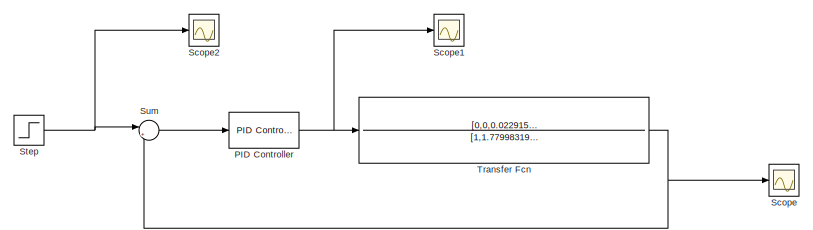
[diagram: root canvas - part 1/3, top center region]
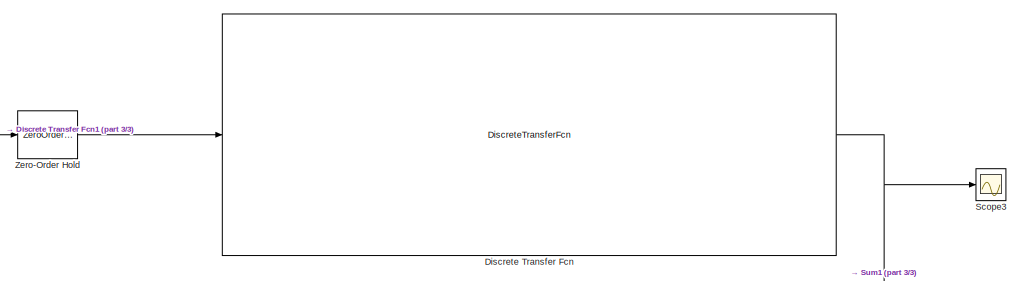
[diagram: root canvas - part 2/3, bottom right region]
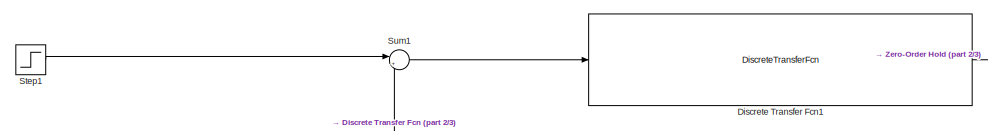
[diagram: root canvas - part 3/3, bottom left region]
MODEL slx_5bbf10d068c1
KIND model
CONFIG AbsTol = auto
CONFIG EnableMultiTasking = off
CONFIG FixedStep = auto
CONFIG MaxStep = auto
CONFIG MinStep = auto
CONFIG RelTol = 1e-3
CONFIG SampleTimeConstraint = Unconstrained
CONFIG Solver = VariableStepAuto
CONFIG SolverName = VariableStepAuto
CONFIG StartTime = 0.0
CONFIG StopTime = 50
BLOCK [DiscreteTransferFcn] Discrete Transfer Fcn
  Denominator = [1,-1.98212934256977,0.982358196992853]
  InputPortMap = u0
  Numerator = [5.67795564035598e-07,1.13559112807120e-06,5.67795564035598e-07]
  Ports = [1, 1]
BLOCK [DiscreteTransferFcn] Discrete Transfer Fcn1
  Denominator = [1,-1]
  InputPortMap = u0
  Numerator = [12.0550020000000,-11.9449980000000]
  Ports = [1, 1]
BLOCK [Reference] PID Controller  REF=simulink/Continuous/PID Controller
  Ports = [1, 1]
  SourceBlock = simulink/Continuous/PID Controller
  SourceProductBaseCode = SL
  SourceProductName = Simulink
  SourceType = PID 1dof
BLOCK [Scope] Scope
  NumInputPorts = 1
  Ports = [1]
  ScopeSpecificationString = Simulink.scopes.TimeScopeBlockCfg('CurrentConfiguration', extmgr.ConfigurationSet(extmgr.Configuration('Core','General UI',true),extmgr.Configuration('Core','Source UI',true),extmgr.Configuration('Sources','WiredSimulink',true),extmgr.Configuration('Visuals','Time Domain',true,'SerializedDisplays',{struct('MinYLimReal','-1.86443','MaxYLimReal','16.77987','YLabelReal','','MinYLimMag','0.00000','Max...<+1363ch>
BLOCK [Scope] Scope1
  NumInputPorts = 1
  Ports = [1]
  ScopeSpecificationString = Simulink.scopes.TimeScopeBlockCfg('CurrentConfiguration', extmgr.ConfigurationSet(extmgr.Configuration('Core','General UI',true),extmgr.Configuration('Core','Source UI',true),extmgr.Configuration('Sources','WiredSimulink',true,'DataLoggingVariableName','ScopeData1'),extmgr.Configuration('Visuals','Time Domain',true,'SerializedDisplays',{struct('MinYLimReal','-187.94911','MaxYLimReal','1691.542','Y...<+1412ch>
BLOCK [Scope] Scope2
  NumInputPorts = 1
  Ports = [1]
  ScopeSpecificationString = Simulink.scopes.TimeScopeBlockCfg('CurrentConfiguration', extmgr.ConfigurationSet(extmgr.Configuration('Core','General UI',true),extmgr.Configuration('Core','Source UI',true),extmgr.Configuration('Sources','WiredSimulink',true,'DataLoggingVariableName','ScopeData2'),extmgr.Configuration('Visuals','Time Domain',true,'SerializedDisplays',{struct('MinYLimReal','-1.875','MaxYLimReal','16.875','YLabelR...<+1382ch>
BLOCK [Scope] Scope3
  NumInputPorts = 1
  Ports = [1]
  ScopeSpecificationString = Simulink.scopes.TimeScopeBlockCfg('CurrentConfiguration', extmgr.ConfigurationSet(extmgr.Configuration('Core','General UI',true),extmgr.Configuration('Core','Source UI',true),extmgr.Configuration('Sources','WiredSimulink',true,'DataLoggingVariableName','ScopeData3'),extmgr.Configuration('Visuals','Time Domain',true,'SerializedDisplays',{struct('MinYLimReal','-1.86444','MaxYLimReal','16.77994','YLa...<+1411ch>
BLOCK [Step] Step
  After = 15
  SampleTime = 0
BLOCK [Step] Step1
  After = 15
  SampleTime = 0
BLOCK [Sum] Sum
  IconShape = round
  InputSameDT = off
  Inputs = |+-
  OutDataTypeStr = Inherit: Inherit via internal rule
  Ports = [2, 1]
  SaturateOnIntegerOverflow = off
BLOCK [Sum] Sum1
  IconShape = round
  InputSameDT = off
  Inputs = |+-
  OutDataTypeStr = Inherit: Inherit via internal rule
  Ports = [2, 1]
  SaturateOnIntegerOverflow = off
BLOCK [TransferFcn] Transfer Fcn
  Denominator = [1,1.77998319642524,2.30904419095520]
  Numerator = [0,0,0.0229152669390703]
BLOCK [ZeroOrderHold] Zero-Order Hold
  SampleTime = 0.01
LINE Discrete Transfer Fcn1:1 -> Zero-Order Hold:1
NET Discrete Transfer Fcn:1 -> Scope3:1, Sum1:2
NET PID Controller:1 -> Scope1:1, Transfer Fcn:1
LINE Step1:1 -> Sum1:1
NET Step:1 -> Scope2:1, Sum:1
LINE Sum1:1 -> Discrete Transfer Fcn1:1
LINE Sum:1 -> PID Controller:1
NET Transfer Fcn:1 -> Scope:1, Sum:2
LINE Zero-Order Hold:1 -> Discrete Transfer Fcn:1
note: NET lines group one-source signal fan-out (src -> all destinations, sorted); 1:1 wires keep LINE
